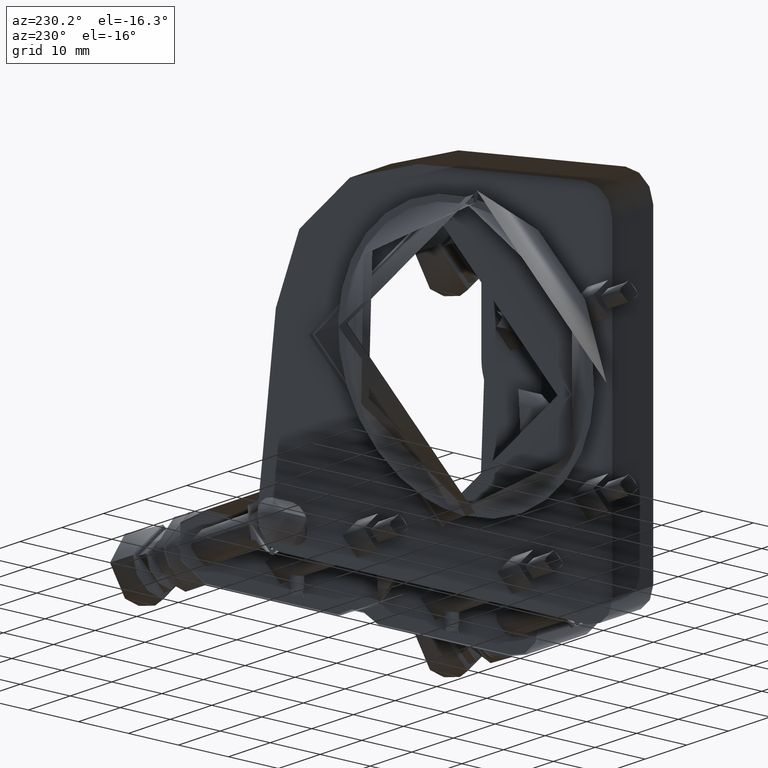
[diagram: clean part render]
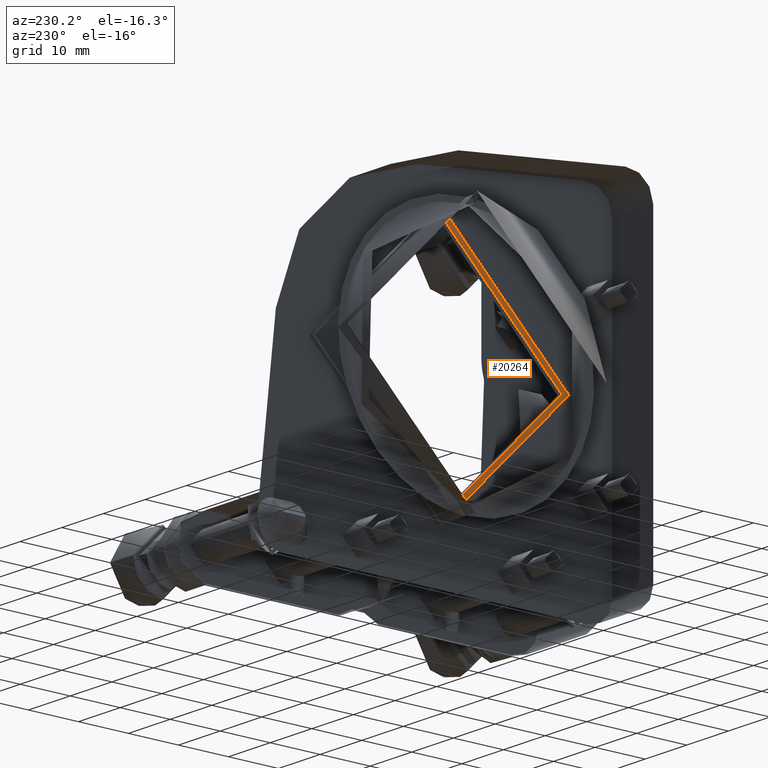
[diagram: same view with one face highlighted and labeled with its STEP entity id]
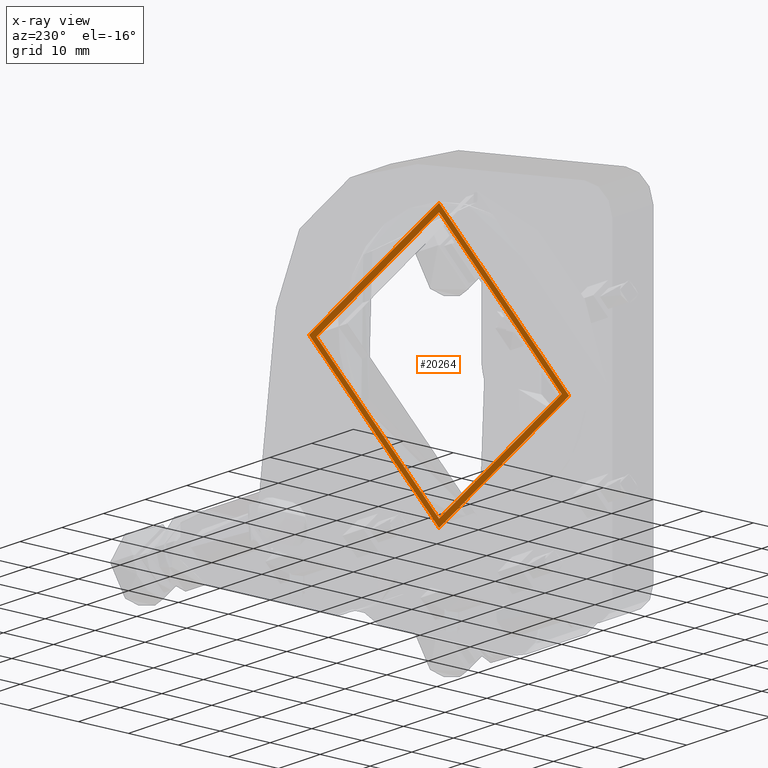
[diagram: x-ray of the same camera — body ghosted, the highlighted face saturated]
A machine part, auxiliary view. The second image highlights one B-rep face of the part: STEP entity #20264.
The next image is the same camera in x-ray: the body ghosted, the highlighted face saturated — about 0% of this face is hidden behind the body in this view.
In plain terms, the highlighted planar face has unit normal (-1, 0, 0).
Its self-contained STEP definition (entity closure, byte-faithful):
#375 = CIRCLE ( 'NONE', #12045, 26.02499999999999858 ) ;
#974 = FACE_OUTER_BOUND ( 'NONE', #4765, .T. ) ;
#1162 = CARTESIAN_POINT ( 'NONE',  ( -4.975619322914199394, -1.317071376953247608, 76.52500000000000568 ) ) ;
#2804 = DIRECTION ( 'NONE',  ( 0.000000000000000000, 0.000000000000000000, 1.000000000000000000 ) ) ;
#3108 = ORIENTED_EDGE ( 'NONE', *, *, #4517, .F. ) ;
#4426 = DIRECTION ( 'NONE',  ( 0.000000000000000000, 0.000000000000000000, 1.000000000000000000 ) ) ;
#4517 = EDGE_CURVE ( 'NONE', #5856, #5856, #19644, .T. ) ;
#4529 = CARTESIAN_POINT ( 'NONE',  ( -4.975619322914199394, -1.317071376953247608, 52.00000000000001421 ) ) ;
#4580 = CARTESIAN_POINT ( 'NONE',  ( -4.975619322914199394, -1.317071376953247608, 52.00000000000001421 ) ) ;
#4765 = EDGE_LOOP ( 'NONE', ( #7959 ) ) ;
#5856 = VERTEX_POINT ( 'NONE', #1162 ) ;
#7103 = DIRECTION ( 'NONE',  ( -1.000000000000000000, -0.000000000000000000, -0.000000000000000000 ) ) ;
#7503 = AXIS2_PLACEMENT_3D ( 'NONE', #4529, #12150, #4426 ) ;
#7959 = ORIENTED_EDGE ( 'NONE', *, *, #16805, .F. ) ;
#12045 = AXIS2_PLACEMENT_3D ( 'NONE', #16221, #7103, #13256 ) ;
#12150 = DIRECTION ( 'NONE',  ( -1.000000000000000000, 0.000000000000000000, 0.000000000000000000 ) ) ;
#12206 = VERTEX_POINT ( 'NONE', #13560 ) ;
#12253 = PLANE ( 'NONE',  #7503 ) ;
#13256 = DIRECTION ( 'NONE',  ( 0.000000000000000000, 0.000000000000000000, -1.000000000000000000 ) ) ;
#13560 = CARTESIAN_POINT ( 'NONE',  ( -4.975619322914199394, -1.317071376953247608, 25.97500000000001208 ) ) ;
#14031 = FACE_BOUND ( 'NONE', #20615, .T. ) ;
#14970 = AXIS2_PLACEMENT_3D ( 'NONE', #4580, #15876, #2804 ) ;
#15876 = DIRECTION ( 'NONE',  ( 1.000000000000000000, 0.000000000000000000, 0.000000000000000000 ) ) ;
#16221 = CARTESIAN_POINT ( 'NONE',  ( -4.975619322914199394, -1.317071376953247608, 52.00000000000001421 ) ) ;
#16805 = EDGE_CURVE ( 'NONE', #12206, #12206, #375, .T. ) ;
#19644 = CIRCLE ( 'NONE', #14970, 24.52499999999999858 ) ;
#20264 = ADVANCED_FACE ( 'NONE', ( #974, #14031 ), #12253, .F. ) ;
#20615 = EDGE_LOOP ( 'NONE', ( #3108 ) ) ;